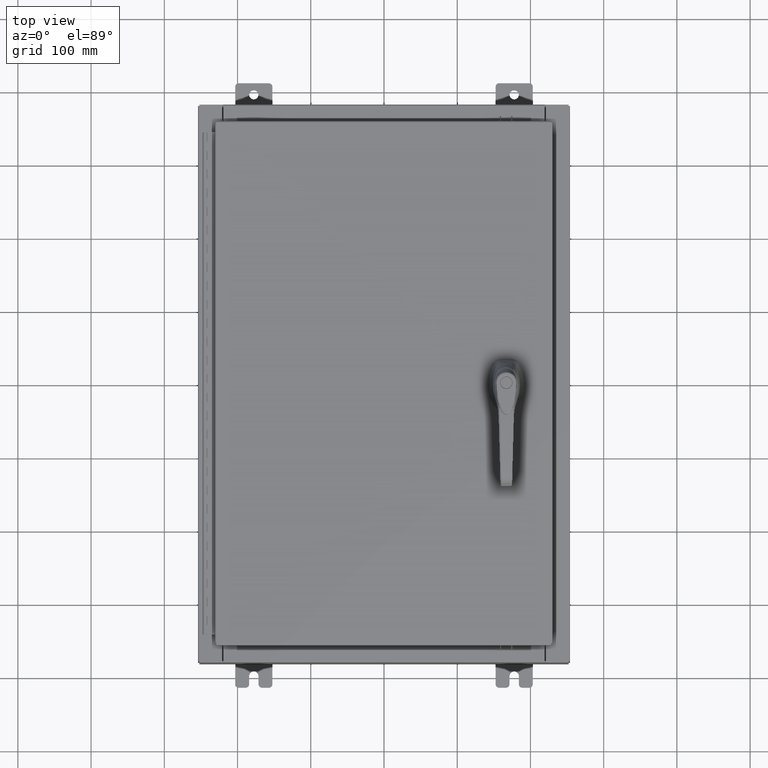
[diagram: clean part render]
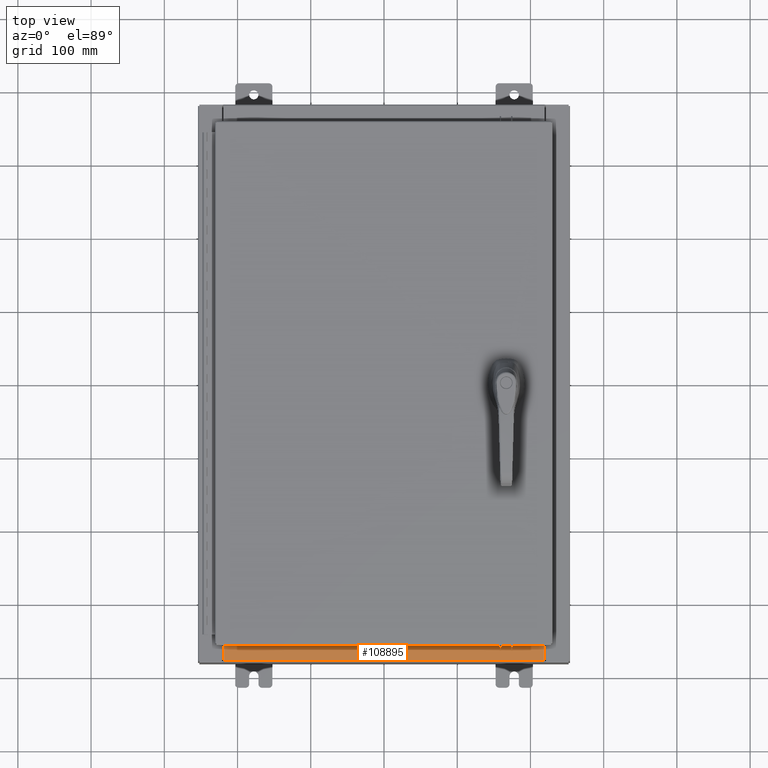
[diagram: same view with one face highlighted and labeled with its STEP entity id]
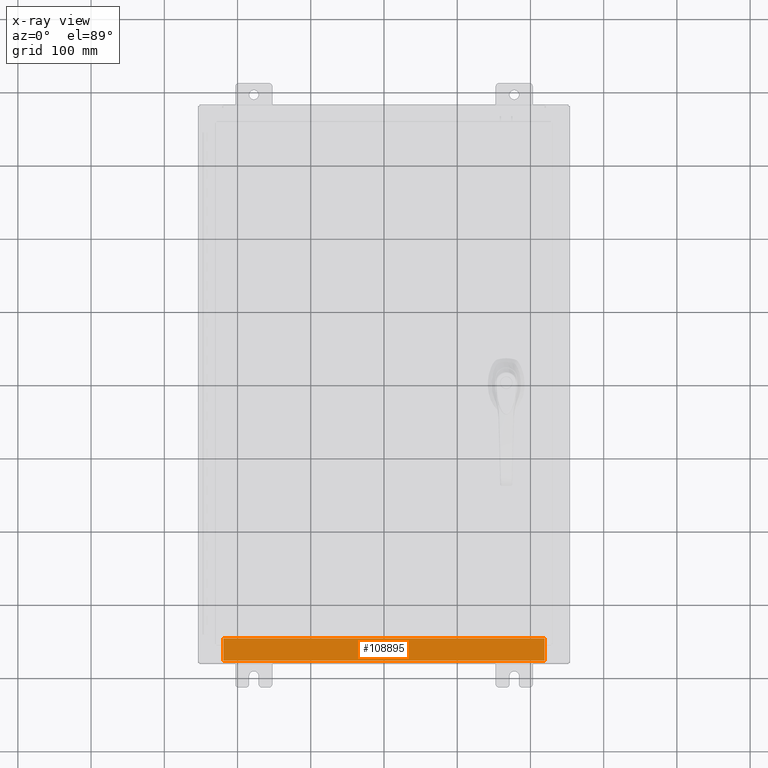
[diagram: x-ray of the same camera — body ghosted, the highlighted face saturated]
A machine part, top view. The second image highlights one B-rep face of the part: STEP entity #108895.
The next image is the same camera in x-ray: the body ghosted, the highlighted face saturated — about 0% of this face is hidden behind the body in this view.
In plain terms, the highlighted planar face has unit normal (-0, -0, 1).
Its self-contained STEP definition (entity closure, byte-faithful):
#1081 = EDGE_CURVE ( 'NONE', #83775, #108972, #35820, .T. ) ;
#2792 = FACE_OUTER_BOUND ( 'NONE', #62242, .T. ) ;
#4733 = ORIENTED_EDGE ( 'NONE', *, *, #33760, .T. ) ;
#5621 = ORIENTED_EDGE ( 'NONE', *, *, #107328, .F. ) ;
#6774 = AXIS2_PLACEMENT_3D ( 'NONE', #10255, #37848, #101804 ) ;
#10255 = CARTESIAN_POINT ( 'NONE',  ( 0.0000000000000000000, 1.069354855923099900E-014, 3.000000000000000900 ) ) ;
#11480 = VECTOR ( 'NONE', #20398, 39.37007874015748100 ) ;
#20398 = DIRECTION ( 'NONE',  ( -1.000000000000000000, 0.0000000000000000000, 0.0000000000000000000 ) ) ;
#21046 = DIRECTION ( 'NONE',  ( -0.0000000000000000000, -1.000000000000000000, 3.566381192773190000E-015 ) ) ;
#30316 = EDGE_CURVE ( 'NONE', #34611, #83775, #101133, .T. ) ;
#31643 = ORIENTED_EDGE ( 'NONE', *, *, #1081, .F. ) ;
#33559 = DIRECTION ( 'NONE',  ( -0.0000000000000000000, 1.000000000000000000, -3.566381192773190000E-015 ) ) ;
#33760 = EDGE_CURVE ( 'NONE', #34611, #62293, #63546, .T. ) ;
#34611 = VERTEX_POINT ( 'NONE', #85819 ) ;
#35820 = LINE ( 'NONE', #60187, #11480 ) ;
#37775 = ORIENTED_EDGE ( 'NONE', *, *, #30316, .F. ) ;
#37848 = DIRECTION ( 'NONE',  ( 0.0000000000000000000, 3.566381192773190000E-015, 1.000000000000000000 ) ) ;
#53426 = DIRECTION ( 'NONE',  ( -1.000000000000000000, 3.162886113166609200E-017, -1.128005754888089100E-031 ) ) ;
#60187 = CARTESIAN_POINT ( 'NONE',  ( 8.637200000000000000, -1.287299999999999900, 3.000000000000005300 ) ) ;
#60684 = VECTOR ( 'NONE', #53426, 39.37007874015748100 ) ;
#62242 = EDGE_LOOP ( 'NONE', ( #5621, #31643, #37775, #4733 ) ) ;
#62293 = VERTEX_POINT ( 'NONE', #66259 ) ;
#63546 = LINE ( 'NONE', #89754, #60684 ) ;
#66259 = CARTESIAN_POINT ( 'NONE',  ( -8.637200000000000000, -0.08770000000000000000, 3.000000000000000900 ) ) ;
#73961 = VECTOR ( 'NONE', #21046, 39.37007874015748100 ) ;
#83775 = VERTEX_POINT ( 'NONE', #105138 ) ;
#83777 = LINE ( 'NONE', #88297, #86625 ) ;
#85819 = CARTESIAN_POINT ( 'NONE',  ( 8.637200000000000000, -0.08769999999999965300, 3.000000000000000900 ) ) ;
#86625 = VECTOR ( 'NONE', #33559, 39.37007874015748100 ) ;
#88297 = CARTESIAN_POINT ( 'NONE',  ( -8.637200000000000000, -0.07469999999999973900, 3.000000000000000900 ) ) ;
#89754 = CARTESIAN_POINT ( 'NONE',  ( -2.773851121247453900E-018, -0.08770000000000000000, 3.000000000000001300 ) ) ;
#93850 = CARTESIAN_POINT ( 'NONE',  ( 8.637200000000000000, -1.300299999999999800, 3.000000000000005300 ) ) ;
#101133 = LINE ( 'NONE', #93850, #73961 ) ;
#101804 = DIRECTION ( 'NONE',  ( 0.0000000000000000000, -1.000000000000000000, 3.566381192773190000E-015 ) ) ;
#105138 = CARTESIAN_POINT ( 'NONE',  ( 8.637200000000000000, -1.287299999999999900, 3.000000000000005300 ) ) ;
#107328 = EDGE_CURVE ( 'NONE', #108972, #62293, #83777, .T. ) ;
#108895 = ADVANCED_FACE ( 'NONE', ( #2792 ), #110687, .T. ) ;
#108972 = VERTEX_POINT ( 'NONE', #111844 ) ;
#110687 = PLANE ( 'NONE',  #6774 ) ;
#111844 = CARTESIAN_POINT ( 'NONE',  ( -8.637200000000000000, -1.287299999999999200, 3.000000000000005300 ) ) ;